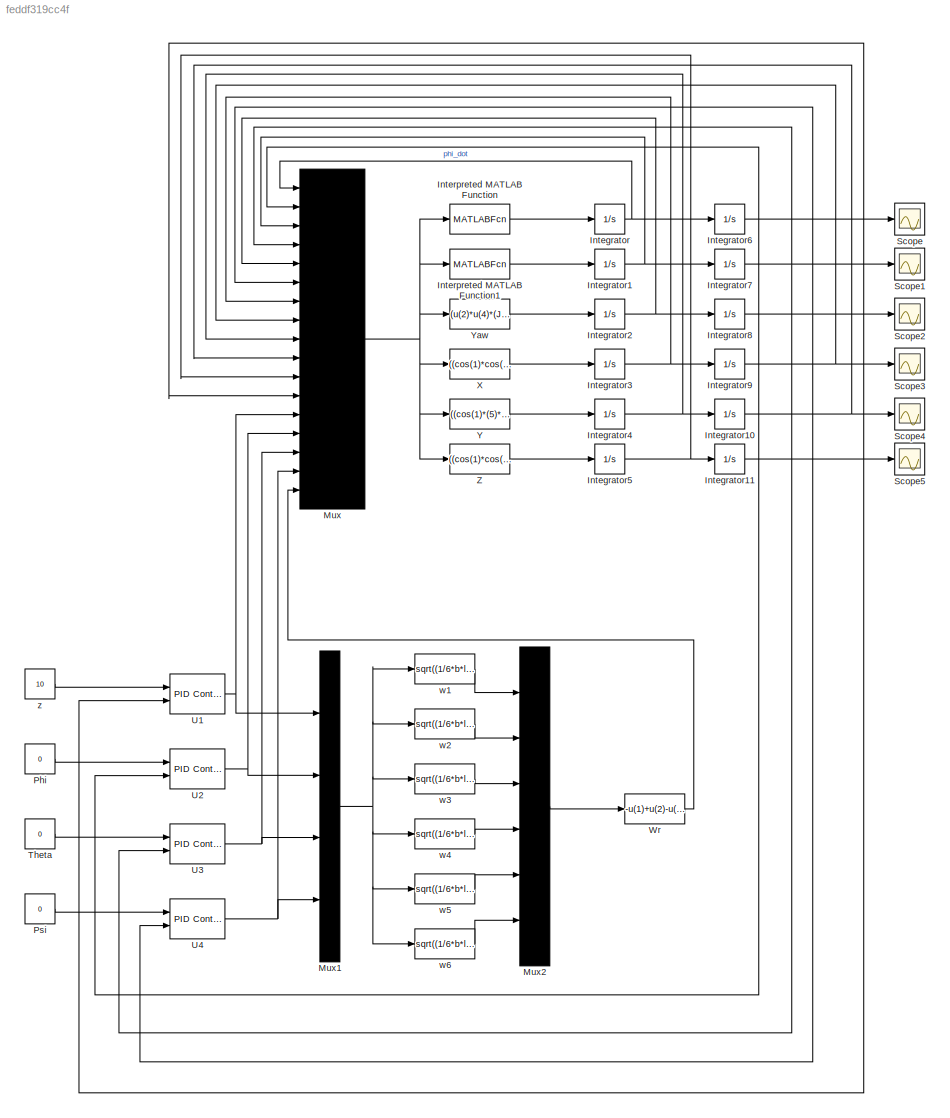
MODEL slx_feddf319cc4f
KIND model
CONFIG AbsTol = auto
CONFIG EnableMultiTasking = off
CONFIG FixedStep = auto
CONFIG MaxStep = auto
CONFIG MinStep = auto
CONFIG RelTol = 1e-3
CONFIG SampleTimeConstraint = Unconstrained
CONFIG Solver = VariableStepAuto
CONFIG SolverName = VariableStepAuto
CONFIG StartTime = 0.0
CONFIG StopTime = 10.0
BLOCK [Integrator] Integrator
  Ports = [1, 1]
BLOCK [Integrator] Integrator1
  Ports = [1, 1]
BLOCK [Integrator] Integrator10
  Ports = [1, 1]
BLOCK [Integrator] Integrator11
  Ports = [1, 1]
BLOCK [Integrator] Integrator2
  Ports = [1, 1]
BLOCK [Integrator] Integrator3
  Ports = [1, 1]
BLOCK [Integrator] Integrator4
  Ports = [1, 1]
BLOCK [Integrator] Integrator5
  Ports = [1, 1]
BLOCK [Integrator] Integrator6
  Ports = [1, 1]
BLOCK [Integrator] Integrator7
  Ports = [1, 1]
BLOCK [Integrator] Integrator8
  Ports = [1, 1]
BLOCK [Integrator] Integrator9
  Ports = [1, 1]
BLOCK [MATLABFcn] Interpreted MATLAB Function
  MATLABFcn = ((u(4)*u(6)*(Jyy-Jzz))-(Jr*u(17)*u(4))+u(14))/Jxx
  Ports = [1, 1]
BLOCK [MATLABFcn] Interpreted MATLAB Function1
  MATLABFcn = (u(2)*u(6)*(Jzz-Jxx)+Jr*u(17)*u(2)+u(15))/Jyy
  Ports = [1, 1]
BLOCK [Mux] Mux
  DisplayOption = bar
  Inputs = 17
  Ports = [17, 1]
BLOCK [Mux] Mux1
  DisplayOption = bar
  Ports = [4, 1]
BLOCK [Mux] Mux2
  DisplayOption = bar
  Inputs = 6
  Ports = [6, 1]
BLOCK [Constant] Phi
  Value = 0
BLOCK [Constant] Psi
  Value = 0
BLOCK [Scope] Scope
  NumInputPorts = 1
  Ports = [1]
  ScopeSpecificationString = Simulink.scopes.TimeScopeBlockCfg('CurrentConfiguration', extmgr.ConfigurationSet(extmgr.Configuration('Core','General UI',true),extmgr.Configuration('Core','Source UI',true),extmgr.Configuration('Sources','WiredSimulink',true,'DataLoggingVariableName','ScopeData1'),extmgr.Configuration('Visuals','Time Domain',true,'SerializedDisplays',{struct('MinYLimReal','-1.00000','MaxYLimReal','1.00000','YLab...<+1425ch>
BLOCK [Scope] Scope1
  NumInputPorts = 1
  Ports = [1]
  ScopeSpecificationString = Simulink.scopes.TimeScopeBlockCfg('CurrentConfiguration', extmgr.ConfigurationSet(extmgr.Configuration('Core','General UI',true),extmgr.Configuration('Core','Source UI',true),extmgr.Configuration('Sources','WiredSimulink',true,'DataLoggingVariableName','ScopeData2'),extmgr.Configuration('Visuals','Time Domain',true),extmgr.Configuration('Tools','Plot Navigation',true),extmgr.Configuration('Tools',...<+40ch>
BLOCK [Scope] Scope2
  NumInputPorts = 1
  Ports = [1]
  ScopeSpecificationString = Simulink.scopes.TimeScopeBlockCfg('CurrentConfiguration', extmgr.ConfigurationSet(extmgr.Configuration('Core','General UI',true),extmgr.Configuration('Core','Source UI',true),extmgr.Configuration('Sources','WiredSimulink',true,'DataLoggingVariableName','ScopeData3'),extmgr.Configuration('Visuals','Time Domain',true),extmgr.Configuration('Tools','Plot Navigation',true),extmgr.Configuration('Tools',...<+40ch>
BLOCK [Scope] Scope3
  NumInputPorts = 1
  Ports = [1]
  ScopeSpecificationString = Simulink.scopes.TimeScopeBlockCfg('CurrentConfiguration', extmgr.ConfigurationSet(extmgr.Configuration('Core','General UI',true),extmgr.Configuration('Core','Source UI',true),extmgr.Configuration('Sources','WiredSimulink',true,'DataLoggingVariableName','ScopeData4'),extmgr.Configuration('Visuals','Time Domain',true),extmgr.Configuration('Tools','Plot Navigation',true),extmgr.Configuration('Tools',...<+40ch>
BLOCK [Scope] Scope4
  NumInputPorts = 1
  Ports = [1]
  ScopeSpecificationString = Simulink.scopes.TimeScopeBlockCfg('CurrentConfiguration', extmgr.ConfigurationSet(extmgr.Configuration('Core','General UI',true),extmgr.Configuration('Core','Source UI',true),extmgr.Configuration('Sources','WiredSimulink',true,'DataLoggingVariableName','ScopeData5'),extmgr.Configuration('Visuals','Time Domain',true),extmgr.Configuration('Tools','Plot Navigation',true),extmgr.Configuration('Tools',...<+40ch>
BLOCK [Scope] Scope5
  NumInputPorts = 1
  Ports = [1]
  ScopeSpecificationString = Simulink.scopes.TimeScopeBlockCfg('CurrentConfiguration', extmgr.ConfigurationSet(extmgr.Configuration('Core','General UI',true),extmgr.Configuration('Core','Source UI',true),extmgr.Configuration('Sources','WiredSimulink',true),extmgr.Configuration('Visuals','Time Domain',true,'SerializedDisplays',{struct('MinYLimReal','-35.67091','MaxYLimReal','5.39406','YLabelReal','','MinYLimMag','0.00000','Max...<+1367ch>
BLOCK [Constant] Theta
  Value = 0
BLOCK [Reference] U1  REF=simulink/Continuous/PID Controller (2DOF)
  Ports = [2, 1]
  SourceBlock = simulink/Continuous/PID Controller (2DOF)
  SourceProductBaseCode = SL
  SourceProductName = Simulink
  SourceType = PID 2dof
BLOCK [Reference] U2  REF=simulink/Continuous/PID Controller (2DOF)
  Ports = [2, 1]
  SourceBlock = simulink/Continuous/PID Controller (2DOF)
  SourceProductBaseCode = SL
  SourceProductName = Simulink
  SourceType = PID 2dof
BLOCK [Reference] U3  REF=simulink/Continuous/PID Controller (2DOF)
  Ports = [2, 1]
  SourceBlock = simulink/Continuous/PID Controller (2DOF)
  SourceProductBaseCode = SL
  SourceProductName = Simulink
  SourceType = PID 2dof
BLOCK [Reference] U4  REF=simulink/Continuous/PID Controller (2DOF)
  Ports = [2, 1]
  SourceBlock = simulink/Continuous/PID Controller (2DOF)
  SourceProductBaseCode = SL
  SourceProductName = Simulink
  SourceType = PID 2dof
BLOCK [Fcn] Wr
  Expr = -u(1)+u(2)-u(3)+u(4)-u(5)+u(6)
BLOCK [Fcn] X
  Expr = ((cos(1)*cos(5)*sin(3) + sin(1)*sin(5))*u(13))/m
BLOCK [Fcn] Y
  Expr = ((cos(1)*(5)*sin(3)*sin(5) - sin(1)*cos(5))*u(13))/m
BLOCK [Fcn] Yaw
  Expr = (u(2)*u(4)*(Jxx-Jzz)+u(16))/Jzz
BLOCK [Fcn] Z
  Expr = ((cos(1)*cos(3))*u(13))/m - g
BLOCK [Fcn] w1
  Expr = sqrt((1/6*b*l)*(l*u(1)+2*u(2)-(b*l*u(4)/d)))
BLOCK [Fcn] w2
  Expr = sqrt((1/6*b*l)*(l*u(1)+u(2)-3^1/2*u(3)+(b*l*u(4))))
BLOCK [Fcn] w3
  Expr = sqrt((1/6*b*l)*(l*u(1)-u(2)-3^1/2*u(3)-(b*l*u(4)/d)))
BLOCK [Fcn] w4
  Expr = sqrt((1/6*b*l)*(l*u(1)-2*u(2)+(b*l*u(4)/d)))
BLOCK [Fcn] w5
  Expr = sqrt((1/6*b*l)*(l*u(1)-u(2)+3^1/2*u(3)-(b*l*u(4)/d)))
BLOCK [Fcn] w6
  Expr = sqrt((1/6*b*l)*(l*u(1)+u(2)+3^1/2*u(3)+(b*l*u(4)/d)))
BLOCK [Constant] z
  Value = 10
NET Integrator10:1 -> Mux:10, Scope4:1
NET Integrator11:1 -> Mux:12, Scope5:1, U1:2
NET Integrator1:1 -> Integrator7:1, Mux:3
NET Integrator2:1 -> Integrator8:1, Mux:5
NET Integrator3:1 -> Integrator9:1, Mux:7
NET Integrator4:1 -> Integrator10:1, Mux:9
NET Integrator5:1 -> Integrator11:1, Mux:11
NET Integrator6:1 -> Mux:2, Scope:1, U2:2
NET Integrator7:1 -> Mux:4, Scope1:1, U3:2
NET Integrator8:1 -> Mux:6, Scope2:1, U4:2
NET Integrator9:1 -> Mux:8, Scope3:1
NET Integrator:1 -> Integrator6:1, Mux:1
LINE Interpreted MATLAB Function1:1 -> Integrator1:1
LINE Interpreted MATLAB Function:1 -> Integrator:1
NET Mux1:1 -> w1:1, w2:1, w3:1, w4:1, w5:1, w6:1
LINE Mux2:1 -> Wr:1
NET Mux:1 -> Interpreted MATLAB Function1:1, Interpreted MATLAB Function:1, X:1, Y:1, Yaw:1, Z:1
LINE Phi:1 -> U2:1
LINE Psi:1 -> U4:1
LINE Theta:1 -> U3:1
NET U1:1 -> Mux1:1, Mux:13
NET U2:1 -> Mux1:2, Mux:14
NET U3:1 -> Mux1:3, Mux:15
NET U4:1 -> Mux1:4, Mux:16
LINE Wr:1 -> Mux:17
LINE X:1 -> Integrator3:1
LINE Y:1 -> Integrator4:1
LINE Yaw:1 -> Integrator2:1
LINE Z:1 -> Integrator5:1
LINE w1:1 -> Mux2:1
LINE w2:1 -> Mux2:2
LINE w3:1 -> Mux2:3
LINE w4:1 -> Mux2:4
LINE w5:1 -> Mux2:5
LINE w6:1 -> Mux2:6
LINE z:1 -> U1:1
note: NET lines group one-source signal fan-out (src -> all destinations, sorted); 1:1 wires keep LINE
